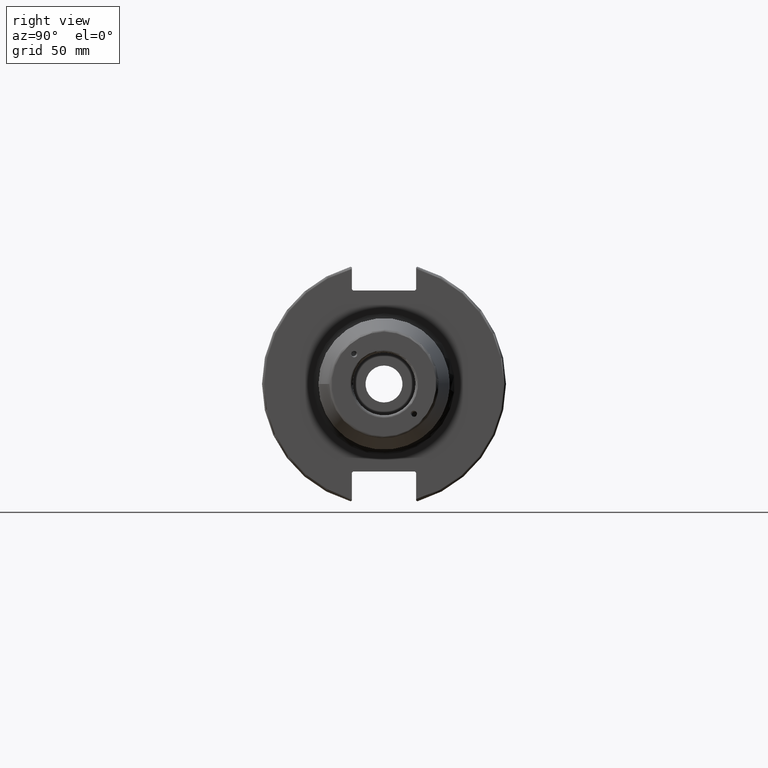
[diagram: clean part render]
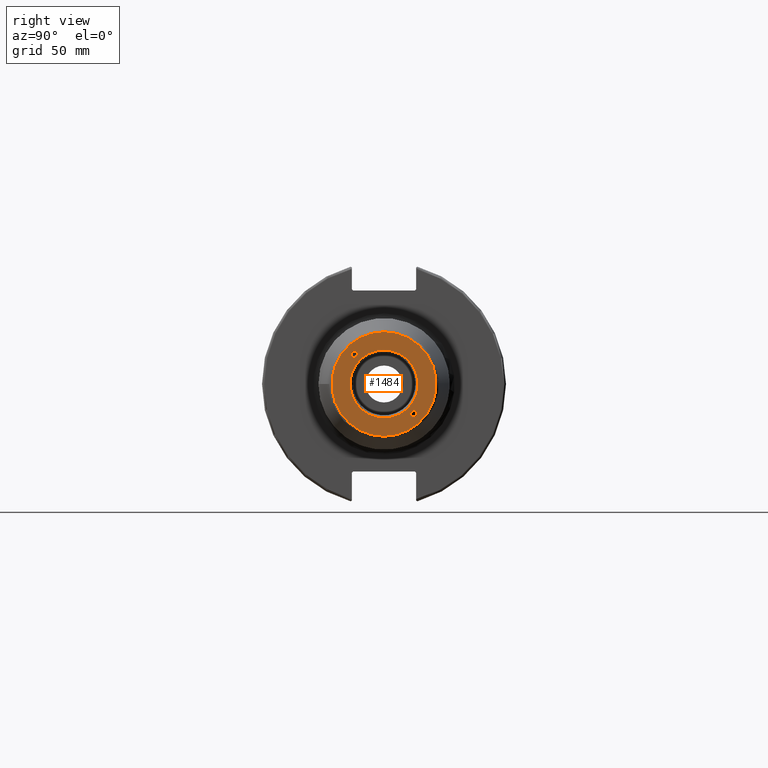
[diagram: same view with one face highlighted and labeled with its STEP entity id]
A machine part, right view. The second image highlights one B-rep face of the part: STEP entity #1484.
In plain terms, the highlighted planar face has unit normal (1, 0, 0).
Its self-contained STEP definition (entity closure, byte-faithful):
#299=FACE_BOUND('',#452,.T.);
#300=FACE_BOUND('',#453,.T.);
#301=FACE_BOUND('',#454,.T.);
#321=ELLIPSE('',#1601,1.25076193037353,1.25);
#322=ELLIPSE('',#1602,1.25076193037353,1.25);
#325=PLANE('',#1599);
#363=FACE_OUTER_BOUND('',#451,.T.);
#451=EDGE_LOOP('',(#1023));
#452=EDGE_LOOP('',(#1024));
#453=EDGE_LOOP('',(#1025));
#454=EDGE_LOOP('',(#1026));
#563=CIRCLE('',#1598,13.7);
#564=CIRCLE('',#1600,21.0756095083418);
#638=VERTEX_POINT('',#2200);
#639=VERTEX_POINT('',#2204);
#640=VERTEX_POINT('',#2206);
#641=VERTEX_POINT('',#2208);
#793=EDGE_CURVE('',#638,#638,#563,.T.);
#794=EDGE_CURVE('',#639,#639,#564,.T.);
#795=EDGE_CURVE('',#640,#640,#321,.T.);
#796=EDGE_CURVE('',#641,#641,#322,.T.);
#1023=ORIENTED_EDGE('',*,*,#794,.F.);
#1024=ORIENTED_EDGE('',*,*,#795,.T.);
#1025=ORIENTED_EDGE('',*,*,#796,.T.);
#1026=ORIENTED_EDGE('',*,*,#793,.F.);
#1484=ADVANCED_FACE('',(#363,#299,#300,#301),#325,.T.);
#1598=AXIS2_PLACEMENT_3D('',#2202,#1772,#1773);
#1599=AXIS2_PLACEMENT_3D('',#2203,#1774,#1775);
#1600=AXIS2_PLACEMENT_3D('',#2205,#1776,#1777);
#1601=AXIS2_PLACEMENT_3D('',#2207,#1778,#1779);
#1602=AXIS2_PLACEMENT_3D('',#2209,#1780,#1781);
#1772=DIRECTION('center_axis',(1.,0.,0.));
#1773=DIRECTION('ref_axis',(0.,-1.,1.83697019872103E-16));
#1774=DIRECTION('center_axis',(1.,0.,0.));
#1775=DIRECTION('ref_axis',(0.,0.,-1.));
#1776=DIRECTION('center_axis',(-1.,0.,0.));
#1777=DIRECTION('ref_axis',(0.,-1.,1.83697019872103E-16));
#1778=DIRECTION('center_axis',(-1.,0.,0.));
#1779=DIRECTION('ref_axis',(0.,-0.707106781186413,0.707106781186682));
#1780=DIRECTION('center_axis',(-1.,0.,0.));
#1781=DIRECTION('ref_axis',(0.,0.707106781186413,-0.707106781186682));
#2200=CARTESIAN_POINT('',(160.,-1.67776611483187E-15,13.7));
#2202=CARTESIAN_POINT('Origin',(160.,0.,0.));
#2203=CARTESIAN_POINT('Origin',(160.,12.7,0.));
#2204=CARTESIAN_POINT('',(160.,-2.58101777244703E-15,21.0756095083418));
#2205=CARTESIAN_POINT('Origin',(160.,0.,0.));
#2206=CARTESIAN_POINT('',(160.,-10.7704342569484,12.0200533498331));
#2207=CARTESIAN_POINT('Origin',(160.,-12.0208152801713,12.0208152801713));
#2208=CARTESIAN_POINT('',(160.,10.7704342569484,-12.0200533498331));
#2209=CARTESIAN_POINT('Origin',(160.,12.0208152801713,-12.0208152801713));